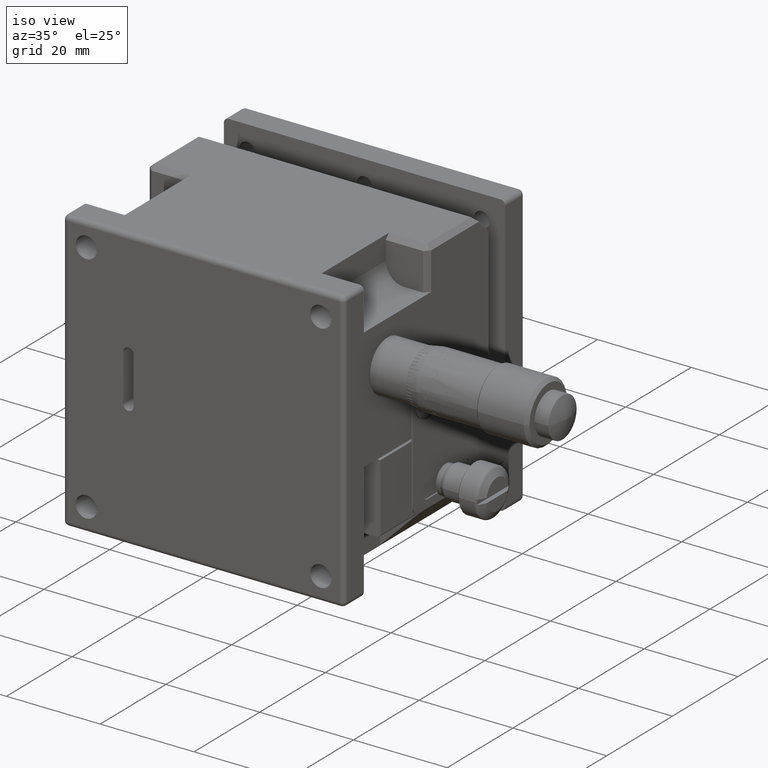
[diagram: clean part render]
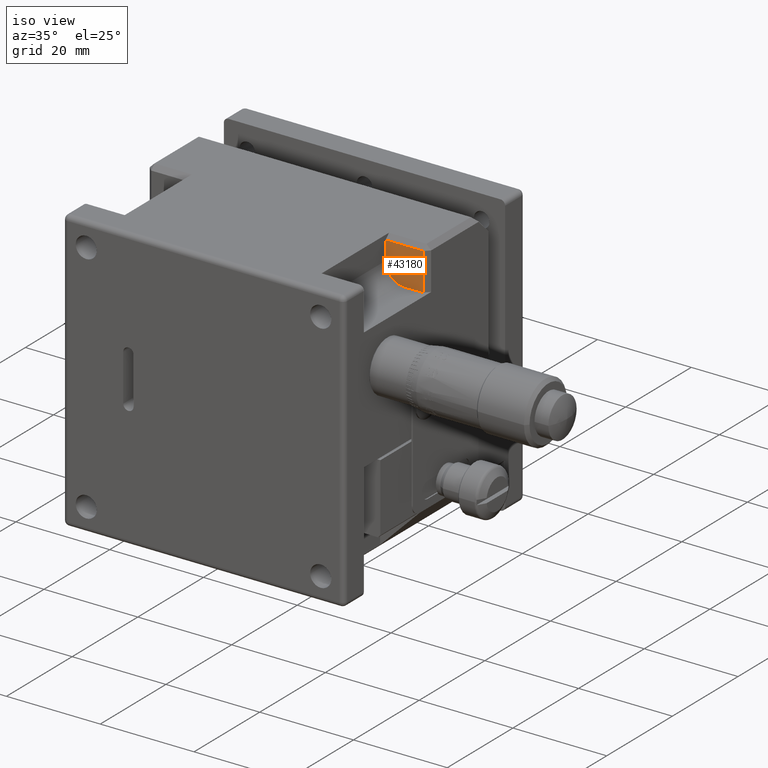
[diagram: same view with one face highlighted and labeled with its STEP entity id]
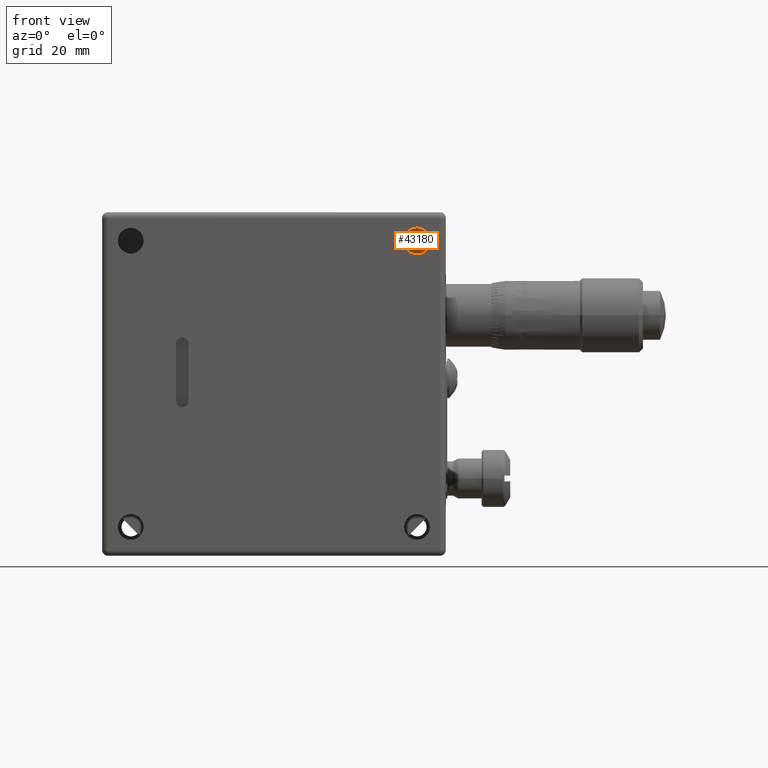
[diagram: same view with one face highlighted and labeled with its STEP entity id]
A machine part, iso view. The second image highlights one B-rep face of the part: STEP entity #43180.
A second angle (front view) of the same face is appended — the face is thin or edge-on in the first view.
In plain terms, the highlighted planar face has unit normal (0, -1, -0).
Its self-contained STEP definition (entity closure, byte-faithful):
#3057 = CIRCLE ( 'NONE', #24931, 4.000000000000000000 ) ;
#3949 = EDGE_CURVE ( 'NONE', #20129, #53041, #3057, .T. ) ;
#4060 = LINE ( 'NONE', #55052, #21089 ) ;
#4242 = ORIENTED_EDGE ( 'NONE', *, *, #43520, .T. ) ;
#4278 = DIRECTION ( 'NONE',  ( -1.000000000000000000, 0.000000000000000000, 0.000000000000000000 ) ) ;
#6492 = ORIENTED_EDGE ( 'NONE', *, *, #58682, .T. ) ;
#7106 = CARTESIAN_POINT ( 'NONE',  ( 29.00000000000000000, 25.50000000000000000, 29.00000000000000000 ) ) ;
#7355 = DIRECTION ( 'NONE',  ( 0.000000000000000000, 7.015148818204990395E-31, -1.000000000000000000 ) ) ;
#9280 = CARTESIAN_POINT ( 'NONE',  ( 20.99999999999975131, 25.50000000000000000, 25.00000000000000000 ) ) ;
#9622 = LINE ( 'NONE', #54675, #48864 ) ;
#13019 = LINE ( 'NONE', #32083, #15318 ) ;
#13751 = CARTESIAN_POINT ( 'NONE',  ( 29.00000000000000000, 25.50000000000000000, 21.00000000000000000 ) ) ;
#15318 = VECTOR ( 'NONE', #31203, 1000.000000000000000 ) ;
#17268 = VERTEX_POINT ( 'NONE', #7106 ) ;
#17888 = DIRECTION ( 'NONE',  ( -8.129146460405880280E-33, -8.586639469713750613E-34, 1.000000000000000000 ) ) ;
#18866 = DIRECTION ( 'NONE',  ( 8.129146460405880280E-33, 8.586639469713750613E-34, -1.000000000000000000 ) ) ;
#20129 = VERTEX_POINT ( 'NONE', #9280 ) ;
#21089 = VECTOR ( 'NONE', #36569, 1000.000000000000000 ) ;
#22389 = CARTESIAN_POINT ( 'NONE',  ( 20.99999999999975131, 25.50000000000000000, 29.00000000000000000 ) ) ;
#24931 = AXIS2_PLACEMENT_3D ( 'NONE', #48727, #44268, #4278 ) ;
#26424 = DIRECTION ( 'NONE',  ( 1.665334536937734811E-16, -1.000000000000000000, -7.015148818204990395E-31 ) ) ;
#26736 = VERTEX_POINT ( 'NONE', #13751 ) ;
#28234 = EDGE_CURVE ( 'NONE', #53041, #26736, #4060, .T. ) ;
#29964 = VERTEX_POINT ( 'NONE', #22389 ) ;
#30597 = ORIENTED_EDGE ( 'NONE', *, *, #3949, .T. ) ;
#31203 = DIRECTION ( 'NONE',  ( -1.000000000000000000, -1.665334536937734811E-16, 1.427168086415900007E-30 ) ) ;
#32083 = CARTESIAN_POINT ( 'NONE',  ( 20.99999999999975131, 25.50000000000000000, 29.00000000000000000 ) ) ;
#32187 = CARTESIAN_POINT ( 'NONE',  ( 29.00000000000000000, 25.50000000000000000, 30.00000000000000000 ) ) ;
#35381 = CARTESIAN_POINT ( 'NONE',  ( 20.99999999999975131, 25.50000000000000000, 30.00000000000000000 ) ) ;
#36488 = AXIS2_PLACEMENT_3D ( 'NONE', #35381, #26424, #7355 ) ;
#36569 = DIRECTION ( 'NONE',  ( 1.000000000000000000, 1.665334536937734811E-16, 1.927470528863104750E-16 ) ) ;
#37297 = EDGE_CURVE ( 'NONE', #17268, #29964, #13019, .T. ) ;
#39806 = VECTOR ( 'NONE', #17888, 1000.000000000000000 ) ;
#41686 = ORIENTED_EDGE ( 'NONE', *, *, #37297, .T. ) ;
#43180 = ADVANCED_FACE ( 'NONE', ( #44921 ), #43736, .T. ) ;
#43409 = ORIENTED_EDGE ( 'NONE', *, *, #28234, .T. ) ;
#43520 = EDGE_CURVE ( 'NONE', #29964, #20129, #9622, .T. ) ;
#43736 = PLANE ( 'NONE',  #36488 ) ;
#44268 = DIRECTION ( 'NONE',  ( 0.000000000000000000, -1.000000000000000000, -7.015148818204990395E-31 ) ) ;
#44744 = LINE ( 'NONE', #32187, #39806 ) ;
#44921 = FACE_OUTER_BOUND ( 'NONE', #46310, .T. ) ;
#46310 = EDGE_LOOP ( 'NONE', ( #6492, #41686, #4242, #30597, #43409 ) ) ;
#48727 = CARTESIAN_POINT ( 'NONE',  ( 24.99999999999975131, 25.50000000000000000, 25.00000000000000000 ) ) ;
#48864 = VECTOR ( 'NONE', #18866, 1000.000000000000000 ) ;
#49498 = CARTESIAN_POINT ( 'NONE',  ( 24.99999999999975131, 25.50000000000000000, 21.00000000000000000 ) ) ;
#53041 = VERTEX_POINT ( 'NONE', #49498 ) ;
#54675 = CARTESIAN_POINT ( 'NONE',  ( 20.99999999999975131, 25.50000000000000000, 30.00000000000000000 ) ) ;
#55052 = CARTESIAN_POINT ( 'NONE',  ( 30.00000000000000000, 25.50000000000000000, 21.00000000000000000 ) ) ;
#58682 = EDGE_CURVE ( 'NONE', #26736, #17268, #44744, .T. ) ;